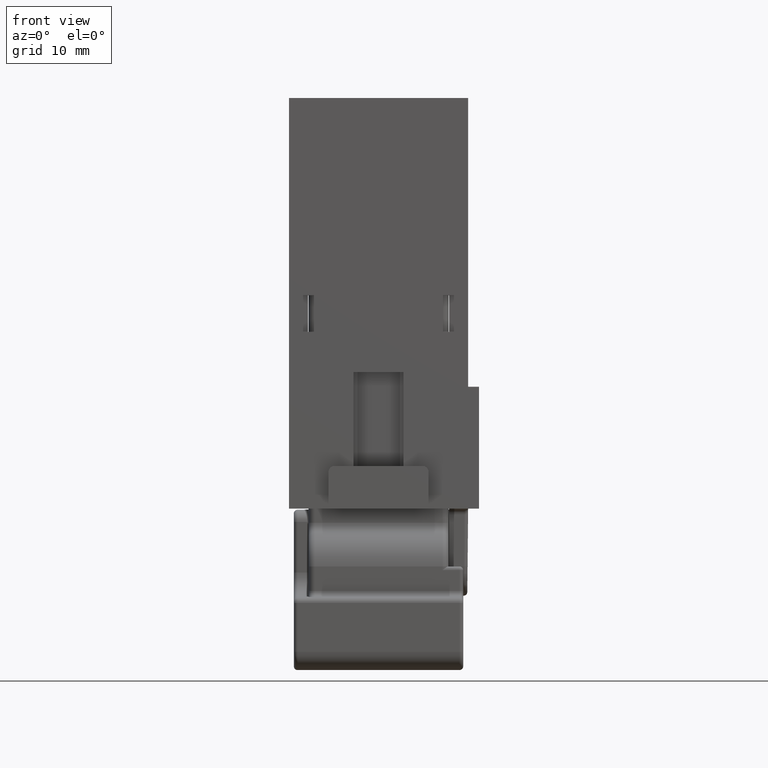
[diagram: clean part render]
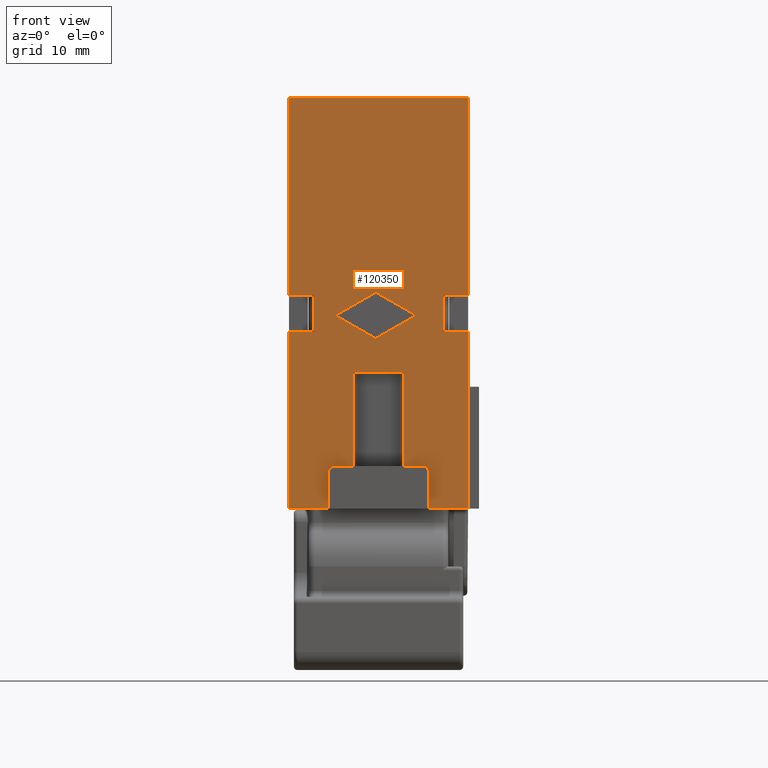
[diagram: same view with one face highlighted and labeled with its STEP entity id]
A machine part, front view. The second image highlights one B-rep face of the part: STEP entity #120350.
In plain terms, the highlighted planar face has unit normal (0, 1, 0).
Its self-contained STEP definition (entity closure, byte-faithful):
#18420=CARTESIAN_POINT('',(45.775,66.2500000516669,2.35250000000032));
#18430=DIRECTION('',(1.,-0.,3.33066907387547E-16));
#18440=DIRECTION('',(0.,1.,0.));
#18450=AXIS2_PLACEMENT_3D('',#18420,#18430,#18440);
#18460=PLANE('',#18450);
#22160=CARTESIAN_POINT('',(45.775,62.3648893668189,-16.1404067466921));
#22170=DIRECTION('',(-1.,0.,-3.33066907387547E-16));
#22180=DIRECTION('',(0.,-1.,0.));
#22190=AXIS2_PLACEMENT_3D('',#22160,#22170,#22180);
#22200=CIRCLE('',#22190,0.0625694251649973);
#22210=CARTESIAN_POINT('',(45.775,62.3959391836723,-16.0860850950341));
#22220=VERTEX_POINT('',#22210);
#22230=CARTESIAN_POINT('',(45.775,62.3959391836724,-16.1947283983499));
#22240=VERTEX_POINT('',#22230);
#22250=EDGE_CURVE('',#22220,#22240,#22200,.T.);
#22270=CARTESIAN_POINT('',(45.775,0.,19.578929220956));
#22280=DIRECTION('',(1.38777878078145E-16,0.868182047616828,
-0.496245838467037));
#22290=VECTOR('',#22280,1.);
#22300=LINE('',#22270,#22290);
#22310=CARTESIAN_POINT('',(45.775,59.2394895217923,-14.28188399074));
#22320=VERTEX_POINT('',#22310);
#22330=EDGE_CURVE('',#22320,#22220,#22300,.T.);
#22350=CARTESIAN_POINT('',(45.775,59.177458791984,-14.390406746692));
#22360=DIRECTION('',(-1.,0.,-3.33066907387547E-16));
#22370=DIRECTION('',(0.,-1.,0.));
#22380=AXIS2_PLACEMENT_3D('',#22350,#22360,#22370);
#22390=CIRCLE('',#22380,0.124999999999963);
#22400=CARTESIAN_POINT('',(45.775,59.1154270182731,-14.2818845874329));
#22410=VERTEX_POINT('',#22400);
#22420=EDGE_CURVE('',#22410,#22320,#22390,.T.);
#22440=CARTESIAN_POINT('',(45.775,0.,-48.0725391104801));
#22450=DIRECTION('',(-1.66533453693774E-16,0.868177274073498,
0.496254189687413));
#22460=VECTOR('',#22450,1.);
#22470=LINE('',#22440,#22460);
#22480=CARTESIAN_POINT('',(45.775,55.9589429051285,-16.0861456670625));
#22490=VERTEX_POINT('',#22480);
#22500=EDGE_CURVE('',#22490,#22410,#22470,.T.);
#22520=CARTESIAN_POINT('',(45.775,55.989958791984,-16.1404067466921));
#22530=DIRECTION('',(-1.,0.,-3.33066907387547E-16));
#22540=DIRECTION('',(0.,-1.,0.));
#22550=AXIS2_PLACEMENT_3D('',#22520,#22530,#22540);
#22560=CIRCLE('',#22550,0.062499999999993);
#22570=CARTESIAN_POINT('',(45.775,55.9589429051285,-16.1946678263216));
#22580=VERTEX_POINT('',#22570);
#22590=EDGE_CURVE('',#22580,#22490,#22560,.T.);
#22610=CARTESIAN_POINT('',(45.775,0.,15.791725617096));
#22620=DIRECTION('',(-1.66533453693774E-16,-0.868177274073498,
0.496254189687413));
#22630=VECTOR('',#22620,1.);
#22640=LINE('',#22610,#22630);
#22650=CARTESIAN_POINT('',(45.775,59.1154270182731,-17.9989289059513));
#22660=VERTEX_POINT('',#22650);
#22670=EDGE_CURVE('',#22660,#22580,#22640,.T.);
#22690=CARTESIAN_POINT('',(45.775,59.177458791984,-17.8904067466921));
#22700=DIRECTION('',(-1.,0.,-3.33066907387547E-16));
#22710=DIRECTION('',(0.,-1.,0.));
#22720=AXIS2_PLACEMENT_3D('',#22690,#22700,#22710);
#22730=CIRCLE('',#22720,0.125);
#22740=CARTESIAN_POINT('',(45.775,59.2394895217924,-17.9989295026442));
#22750=VERTEX_POINT('',#22740);
#22760=EDGE_CURVE('',#22750,#22660,#22730,.T.);
#22780=CARTESIAN_POINT('',(45.775,0.,-51.8597427143393));
#22790=DIRECTION('',(1.66533453693774E-16,-0.868182047616833,
-0.496245838467028));
#22800=VECTOR('',#22790,1.);
#22810=LINE('',#22780,#22800);
#22820=EDGE_CURVE('',#22240,#22750,#22810,.T.);
#118530=CARTESIAN_POINT('',(45.775,58.9499999999884,-17.4999999999998));
#118540=DIRECTION('',(1.07852076885685E-32,1.,-2.7755575615627E-17));
#118550=VECTOR('',#118540,1.);
#118560=LINE('',#118530,#118550);
#118570=CARTESIAN_POINT('',(45.775,64.2500000516671,-17.4999999999998));
#118580=VERTEX_POINT('',#118570);
#118590=CARTESIAN_POINT('',(45.775,66.3000000516669,-17.4999999999998));
#118600=VERTEX_POINT('',#118590);
#118610=EDGE_CURVE('',#118580,#118600,#118560,.T.);
#118620=ORIENTED_EDGE('',*,*,#118610,.T.);
#118630=CARTESIAN_POINT('',(45.775,64.2500000516671,-8.82249999999974));
#118640=DIRECTION('',(-3.33066907387547E-16,2.77555756156362E-17,1.));
#118650=VECTOR('',#118640,1.);
#118660=LINE('',#118630,#118650);
#118670=CARTESIAN_POINT('',(45.775,64.2500000516671,-14.4999999999996));
#118680=VERTEX_POINT('',#118670);
#118690=EDGE_CURVE('',#118580,#118680,#118660,.T.);
#118700=ORIENTED_EDGE('',*,*,#118690,.F.);
#118710=CARTESIAN_POINT('',(45.775,58.9499999999884,-14.4999999999996));
#118720=DIRECTION('',(1.07852076885685E-32,1.,-2.77555756156267E-17));
#118730=VECTOR('',#118720,1.);
#118740=LINE('',#118710,#118730);
#118750=CARTESIAN_POINT('',(45.775,66.3000000516669,-14.4999999999996));
#118760=VERTEX_POINT('',#118750);
#118770=EDGE_CURVE('',#118680,#118760,#118740,.T.);
#118780=ORIENTED_EDGE('',*,*,#118770,.F.);
#118790=CARTESIAN_POINT('',(45.775,66.3000000516669,-8.82249999999974));
#118800=DIRECTION('',(3.33066907387547E-16,0.,-1.));
#118810=VECTOR('',#118800,1.);
#118820=LINE('',#118790,#118810);
#118830=CARTESIAN_POINT('',(45.775,66.3000000516669,1.70000000000018));
#118840=VERTEX_POINT('',#118830);
#118850=EDGE_CURVE('',#118840,#118760,#118820,.T.);
#118860=ORIENTED_EDGE('',*,*,#118850,.T.);
#118870=CARTESIAN_POINT('',(45.775,58.9499999999884,1.70000000000018));
#118880=DIRECTION('',(0.,1.,0.));
#118890=VECTOR('',#118880,1.);
#118900=LINE('',#118870,#118890);
#118910=CARTESIAN_POINT('',(45.775,51.6000000516669,1.70000000000018));
#118920=VERTEX_POINT('',#118910);
#118930=EDGE_CURVE('',#118920,#118840,#118900,.T.);
#118940=ORIENTED_EDGE('',*,*,#118930,.T.);
#118950=CARTESIAN_POINT('',(45.775,51.6000000516669,-8.82249999999974));
#118960=DIRECTION('',(-3.33066907387547E-16,0.,1.));
#118970=VECTOR('',#118960,1.);
#118980=LINE('',#118950,#118970);
#118990=CARTESIAN_POINT('',(45.775,51.6000000516669,-14.4999999999996));
#119000=VERTEX_POINT('',#118990);
#119010=EDGE_CURVE('',#119000,#118920,#118980,.T.);
#119020=ORIENTED_EDGE('',*,*,#119010,.T.);
#119030=CARTESIAN_POINT('',(45.775,58.9499999999884,-14.4999999999996));
#119040=DIRECTION('',(1.07852076885685E-32,1.,-2.7755575615626E-17));
#119050=VECTOR('',#119040,1.);
#119060=LINE('',#119030,#119050);
#119070=CARTESIAN_POINT('',(45.775,53.6500000516671,-14.4999999999996));
#119080=VERTEX_POINT('',#119070);
#119090=EDGE_CURVE('',#119000,#119080,#119060,.T.);
#119100=ORIENTED_EDGE('',*,*,#119090,.F.);
#119110=CARTESIAN_POINT('',(45.775,53.6500000516671,-8.82249999999974));
#119120=DIRECTION('',(3.33066907387547E-16,-2.77555756156358E-17,-1.));
#119130=VECTOR('',#119120,1.);
#119140=LINE('',#119110,#119130);
#119150=CARTESIAN_POINT('',(45.775,53.6500000516671,-17.4999999999998));
#119160=VERTEX_POINT('',#119150);
#119170=EDGE_CURVE('',#119080,#119160,#119140,.T.);
#119180=ORIENTED_EDGE('',*,*,#119170,.F.);
#119190=CARTESIAN_POINT('',(45.775,58.9499999999884,-17.4999999999997));
#119200=DIRECTION('',(-1.07852076885685E-32,-1.,2.77555756156258E-17));
#119210=VECTOR('',#119200,1.);
#119220=LINE('',#119190,#119210);
#119230=CARTESIAN_POINT('',(45.775,51.6000000516669,-17.4999999999997));
#119240=VERTEX_POINT('',#119230);
#119250=EDGE_CURVE('',#119160,#119240,#119220,.T.);
#119260=ORIENTED_EDGE('',*,*,#119250,.F.);
#119270=CARTESIAN_POINT('',(45.775,51.6000000516669,-31.9999999999998));
#119280=VERTEX_POINT('',#119270);
#119290=EDGE_CURVE('',#119280,#119240,#118980,.T.);
#119300=ORIENTED_EDGE('',*,*,#119290,.T.);
#119310=CARTESIAN_POINT('',(45.775,58.9499999999884,-31.9999999999998));
#119320=DIRECTION('',(0.,1.,0.));
#119330=VECTOR('',#119320,1.);
#119340=LINE('',#119310,#119330);
#119350=CARTESIAN_POINT('',(45.775,54.8500000516669,-31.9999999999998));
#119360=VERTEX_POINT('',#119350);
#119370=EDGE_CURVE('',#119280,#119360,#119340,.T.);
#119380=ORIENTED_EDGE('',*,*,#119370,.F.);
#119390=CARTESIAN_POINT('',(45.775,54.8500000516669,-8.82249999999974));
#119400=DIRECTION('',(3.33066907387547E-16,-2.77555756156311E-17,-1.));
#119410=VECTOR('',#119400,1.);
#119420=LINE('',#119390,#119410);
#119430=CARTESIAN_POINT('',(45.775,54.8500000516669,-29.));
#119440=VERTEX_POINT('',#119430);
#119450=EDGE_CURVE('',#119440,#119360,#119420,.T.);
#119460=ORIENTED_EDGE('',*,*,#119450,.T.);
#119470=CARTESIAN_POINT('',(45.775,55.3500000516669,-29.));
#119480=DIRECTION('',(-1.,1.22464679914709E-16,-2.41809556967064E-15));
#119490=DIRECTION('',(-1.22464679914709E-16,-1.,2.7755575615631E-17));
#119500=AXIS2_PLACEMENT_3D('',#119470,#119480,#119490);
#119510=CIRCLE('',#119500,0.5);
#119520=CARTESIAN_POINT('',(45.775,55.3500000516669,-28.5));
#119530=VERTEX_POINT('',#119520);
#119540=EDGE_CURVE('',#119440,#119530,#119510,.T.);
#119550=ORIENTED_EDGE('',*,*,#119540,.F.);
#119560=CARTESIAN_POINT('',(45.775,58.9499999999884,-28.5));
#119570=DIRECTION('',(-1.23259516440783E-32,-1.,2.77555756156313E-17));
#119580=VECTOR('',#119570,1.);
#119590=LINE('',#119560,#119580);
#119600=CARTESIAN_POINT('',(45.775,56.9000000516669,-28.5));
#119610=VERTEX_POINT('',#119600);
#119620=EDGE_CURVE('',#119610,#119530,#119590,.T.);
#119630=ORIENTED_EDGE('',*,*,#119620,.T.);
#119640=CARTESIAN_POINT('',(45.775,56.9000000516669,-8.82249999999974));
#119650=DIRECTION('',(-3.33066907387547E-16,0.,1.));
#119660=VECTOR('',#119650,1.);
#119670=LINE('',#119640,#119660);
#119680=CARTESIAN_POINT('',(45.775,56.9000000516669,-20.7999999999998));
#119690=VERTEX_POINT('',#119680);
#119700=EDGE_CURVE('',#119610,#119690,#119670,.T.);
#119710=ORIENTED_EDGE('',*,*,#119700,.F.);
#119720=CARTESIAN_POINT('',(45.775,58.9499999999884,-20.7999999999998));
#119730=DIRECTION('',(0.,-1.,0.));
#119740=VECTOR('',#119730,1.);
#119750=LINE('',#119720,#119740);
#119760=CARTESIAN_POINT('',(45.775,61.0000000516669,-20.7999999999998));
#119770=VERTEX_POINT('',#119760);
#119780=EDGE_CURVE('',#119770,#119690,#119750,.T.);
#119790=ORIENTED_EDGE('',*,*,#119780,.T.);
#119800=CARTESIAN_POINT('',(45.775,61.0000000516669,-8.82249999999974));
#119810=DIRECTION('',(3.33066907387547E-16,0.,-1.));
#119820=VECTOR('',#119810,1.);
#119830=LINE('',#119800,#119820);
#119840=CARTESIAN_POINT('',(45.775,61.0000000516669,-28.5));
#119850=VERTEX_POINT('',#119840);
#119860=EDGE_CURVE('',#119770,#119850,#119830,.T.);
#119870=ORIENTED_EDGE('',*,*,#119860,.F.);
#119880=CARTESIAN_POINT('',(45.775,62.5500000516669,-28.5));
#119890=VERTEX_POINT('',#119880);
#119900=EDGE_CURVE('',#119890,#119850,#119590,.T.);
#119910=ORIENTED_EDGE('',*,*,#119900,.T.);
#119920=CARTESIAN_POINT('',(45.775,62.5500000516669,-29.));
#119930=DIRECTION('',(-1.,1.22464679914709E-16,-2.41809556967064E-15));
#119940=DIRECTION('',(-1.22464679914709E-16,-1.,2.7755575615631E-17));
#119950=AXIS2_PLACEMENT_3D('',#119920,#119930,#119940);
#119960=CIRCLE('',#119950,0.5);
#119970=CARTESIAN_POINT('',(45.775,63.0500000516669,-29.));
#119980=VERTEX_POINT('',#119970);
#119990=EDGE_CURVE('',#119890,#119980,#119960,.T.);
#120000=ORIENTED_EDGE('',*,*,#119990,.F.);
#120010=CARTESIAN_POINT('',(45.775,63.0500000516669,-8.82249999999974));
#120020=DIRECTION('',(-3.33066907387547E-16,2.77555756156311E-17,1.));
#120030=VECTOR('',#120020,1.);
#120040=LINE('',#120010,#120030);
#120050=CARTESIAN_POINT('',(45.775,63.0500000516669,-31.9999999999998));
#120060=VERTEX_POINT('',#120050);
#120070=EDGE_CURVE('',#120060,#119980,#120040,.T.);
#120080=ORIENTED_EDGE('',*,*,#120070,.T.);
#120090=CARTESIAN_POINT('',(45.775,58.9499999999884,-31.9999999999998));
#120100=DIRECTION('',(0.,-1.,0.));
#120110=VECTOR('',#120100,1.);
#120120=LINE('',#120090,#120110);
#120130=CARTESIAN_POINT('',(45.775,66.3000000516669,-31.9999999999998));
#120140=VERTEX_POINT('',#120130);
#120150=EDGE_CURVE('',#120140,#120060,#120120,.T.);
#120160=ORIENTED_EDGE('',*,*,#120150,.T.);
#120170=CARTESIAN_POINT('',(45.775,66.3000000516669,-8.82249999999974));
#120180=DIRECTION('',(-3.33066907387547E-16,0.,1.));
#120190=VECTOR('',#120180,1.);
#120200=LINE('',#120170,#120190);
#120210=EDGE_CURVE('',#120140,#118600,#120200,.T.);
#120220=ORIENTED_EDGE('',*,*,#120210,.F.);
#120230=EDGE_LOOP('',(#120220,#120160,#120080,#120000,#119910,#119870,
#119790,#119710,#119630,#119550,#119460,#119380,#119300,#119260,#119180,
#119100,#119020,#118940,#118860,#118780,#118700,#118620));
#120240=FACE_OUTER_BOUND('',#120230,.T.);
#120250=ORIENTED_EDGE('',*,*,#22760,.F.);
#120260=ORIENTED_EDGE('',*,*,#22670,.F.);
#120270=ORIENTED_EDGE('',*,*,#22590,.F.);
#120280=ORIENTED_EDGE('',*,*,#22500,.F.);
#120290=ORIENTED_EDGE('',*,*,#22420,.F.);
#120300=ORIENTED_EDGE('',*,*,#22330,.F.);
#120310=ORIENTED_EDGE('',*,*,#22250,.F.);
#120320=ORIENTED_EDGE('',*,*,#22820,.F.);
#120330=EDGE_LOOP('',(#120320,#120310,#120300,#120290,#120280,#120270,
#120260,#120250));
#120340=FACE_BOUND('',#120330,.T.);
#120350=ADVANCED_FACE('',(#120240,#120340),#18460,.F.);